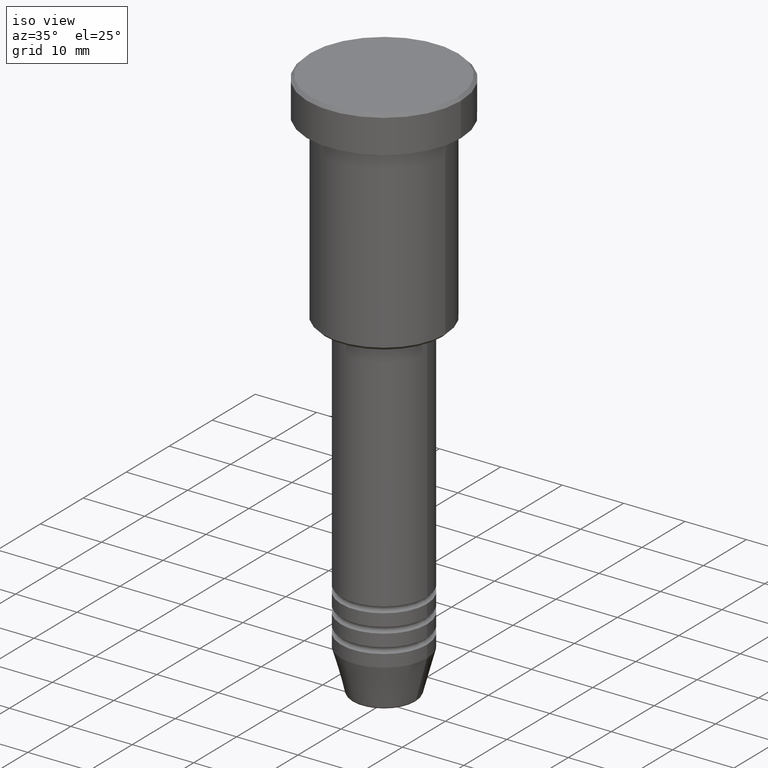
[diagram: clean part render]
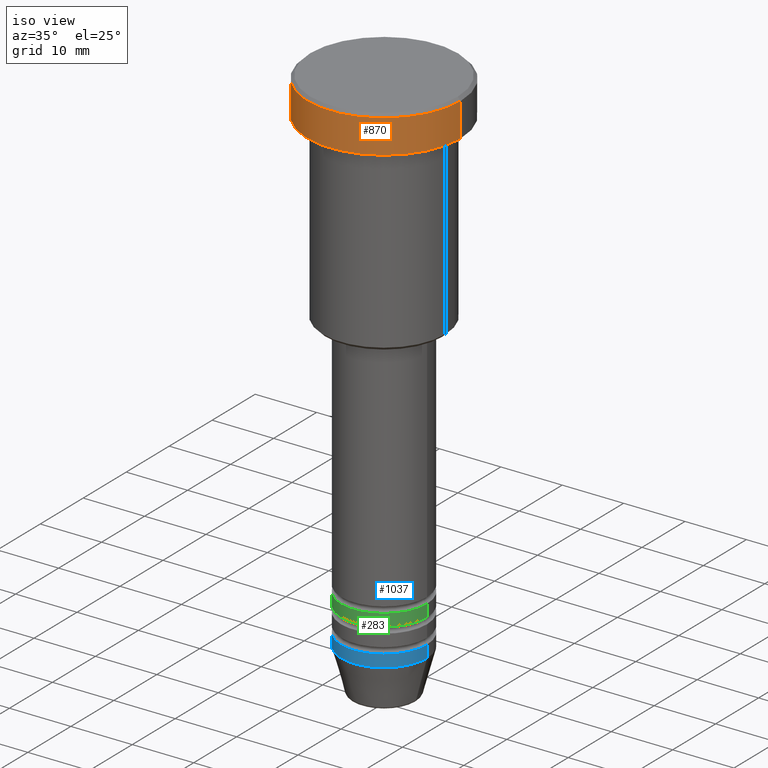
[diagram: same view with three faces highlighted in distinct colors, each labeled with its STEP entity id]
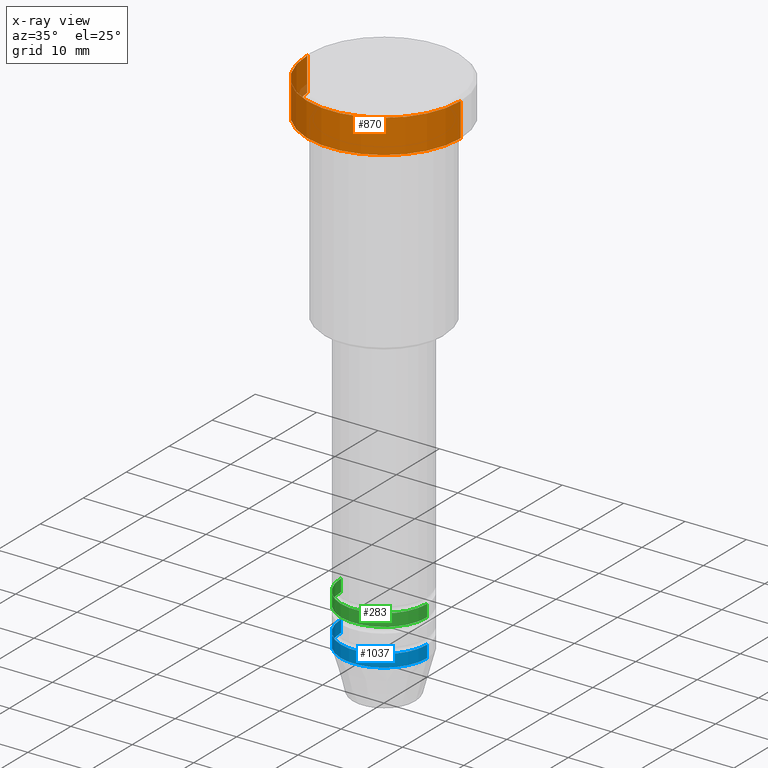
[diagram: x-ray of the same camera — body ghosted, the three highlighted faces saturated]
A machine part, iso view with three faces highlighted in distinct colors.
The next image is the same camera in x-ray (body ghosted, the three faces saturated) — at least one of them is partly hidden behind the body in this view.
Their STEP definitions:

[orange] entity #870 — the highlighted cylindrical surface (partial cylindrical patch) has radius 12.5 mm, axis along (-0, -0, 1).
#19 = DIRECTION ( 'NONE',  ( 1.000000000000000000, 0.000000000000000000, 0.000000000000000000 ) ) ;
#36 = DIRECTION ( 'NONE',  ( -0.000000000000000000, -0.000000000000000000, 1.000000000000000000 ) ) ;
#43 = CARTESIAN_POINT ( 'NONE',  ( -12.50000000000000000, 1.530808498934191521E-15, 0.000000000000000000 ) ) ;
#44 = CARTESIAN_POINT ( 'NONE',  ( 0.000000000000000000, 0.000000000000000000, -0.5000000000000196509 ) ) ;
#103 = VECTOR ( 'NONE', #265, 1000.000000000000000 ) ;
#117 = DIRECTION ( 'NONE',  ( -0.000000000000000000, -0.000000000000000000, 1.000000000000000000 ) ) ;
#140 = DIRECTION ( 'NONE',  ( 0.000000000000000000, 0.000000000000000000, -1.000000000000000000 ) ) ;
#141 = CIRCLE ( 'NONE', #349, 12.50000000000000000 ) ;
#166 = CIRCLE ( 'NONE', #647, 12.50000000000000000 ) ;
#168 = VERTEX_POINT ( 'NONE', #897 ) ;
#197 = EDGE_CURVE ( 'NONE', #755, #168, #269, .T. ) ;
#205 = CARTESIAN_POINT ( 'NONE',  ( 0.000000000000000000, 0.000000000000000000, 0.000000000000000000 ) ) ;
#218 = VERTEX_POINT ( 'NONE', #907 ) ;
#231 = LINE ( 'NONE', #43, #1023 ) ;
#265 = DIRECTION ( 'NONE',  ( -0.000000000000000000, -0.000000000000000000, 1.000000000000000000 ) ) ;
#269 = LINE ( 'NONE', #1163, #103 ) ;
#349 = AXIS2_PLACEMENT_3D ( 'NONE', #758, #859, #1114 ) ;
#361 = VERTEX_POINT ( 'NONE', #412 ) ;
#408 = DIRECTION ( 'NONE',  ( 1.000000000000000000, 0.000000000000000000, 0.000000000000000000 ) ) ;
#412 = CARTESIAN_POINT ( 'NONE',  ( -12.50000000000000000, 1.530808498934191521E-15, -5.999999999999996447 ) ) ;
#444 = ORIENTED_EDGE ( 'NONE', *, *, #772, .T. ) ;
#476 = CARTESIAN_POINT ( 'NONE',  ( 12.50000000000000000, 0.000000000000000000, -5.999999999999996447 ) ) ;
#647 = AXIS2_PLACEMENT_3D ( 'NONE', #44, #140, #408 ) ;
#661 = EDGE_CURVE ( 'NONE', #168, #218, #166, .T. ) ;
#677 = ORIENTED_EDGE ( 'NONE', *, *, #197, .T. ) ;
#723 = AXIS2_PLACEMENT_3D ( 'NONE', #205, #117, #19 ) ;
#755 = VERTEX_POINT ( 'NONE', #476 ) ;
#758 = CARTESIAN_POINT ( 'NONE',  ( 0.000000000000000000, 0.000000000000000000, -5.999999999999996447 ) ) ;
#772 = EDGE_CURVE ( 'NONE', #361, #755, #141, .T. ) ;
#818 = ORIENTED_EDGE ( 'NONE', *, *, #661, .T. ) ;
#840 = CYLINDRICAL_SURFACE ( 'NONE', #723, 12.50000000000000000 ) ;
#859 = DIRECTION ( 'NONE',  ( -0.000000000000000000, -0.000000000000000000, 1.000000000000000000 ) ) ;
#870 = ADVANCED_FACE ( 'NONE', ( #925 ), #840, .T. ) ;
#897 = CARTESIAN_POINT ( 'NONE',  ( 12.50000000000000000, 0.000000000000000000, -0.5000000000000196509 ) ) ;
#907 = CARTESIAN_POINT ( 'NONE',  ( -12.50000000000000000, 1.530808498934191521E-15, -0.5000000000000196509 ) ) ;
#925 = FACE_OUTER_BOUND ( 'NONE', #1169, .T. ) ;
#964 = ORIENTED_EDGE ( 'NONE', *, *, #1162, .F. ) ;
#1023 = VECTOR ( 'NONE', #36, 1000.000000000000000 ) ;
#1114 = DIRECTION ( 'NONE',  ( 1.000000000000000000, 0.000000000000000000, 0.000000000000000000 ) ) ;
#1162 = EDGE_CURVE ( 'NONE', #361, #218, #231, .T. ) ;
#1163 = CARTESIAN_POINT ( 'NONE',  ( 12.50000000000000000, 0.000000000000000000, 0.000000000000000000 ) ) ;
#1169 = EDGE_LOOP ( 'NONE', ( #964, #444, #677, #818 ) ) ;

[blue] entity #1037 — the highlighted cylindrical surface (partial cylindrical patch) has radius 7 mm, axis along (-0, -0, 1).
#38 = VERTEX_POINT ( 'NONE', #150 ) ;
#42 = ORIENTED_EDGE ( 'NONE', *, *, #131, .T. ) ;
#46 = DIRECTION ( 'NONE',  ( -0.000000000000000000, -0.000000000000000000, 1.000000000000000000 ) ) ;
#77 = EDGE_CURVE ( 'NONE', #1078, #38, #594, .T. ) ;
#115 = EDGE_CURVE ( 'NONE', #1078, #887, #789, .T. ) ;
#120 = CARTESIAN_POINT ( 'NONE',  ( -7.000000000000000000, 8.572527594031473190E-16, -83.99999999999998579 ) ) ;
#131 = EDGE_CURVE ( 'NONE', #887, #378, #615, .T. ) ;
#150 = CARTESIAN_POINT ( 'NONE',  ( -7.000000000000000000, 8.572527594031473190E-16, -81.99999999999998579 ) ) ;
#183 = AXIS2_PLACEMENT_3D ( 'NONE', #235, #1111, #1137 ) ;
#221 = CARTESIAN_POINT ( 'NONE',  ( -7.000000000000000000, 8.572527594031473190E-16, 0.000000000000000000 ) ) ;
#235 = CARTESIAN_POINT ( 'NONE',  ( 0.000000000000000000, 0.000000000000000000, -81.99999999999998579 ) ) ;
#249 = DIRECTION ( 'NONE',  ( -0.000000000000000000, -0.000000000000000000, 1.000000000000000000 ) ) ;
#343 = CARTESIAN_POINT ( 'NONE',  ( 0.000000000000000000, 0.000000000000000000, -83.99999999999998579 ) ) ;
#378 = VERTEX_POINT ( 'NONE', #778 ) ;
#409 = AXIS2_PLACEMENT_3D ( 'NONE', #1178, #807, #1173 ) ;
#429 = DIRECTION ( 'NONE',  ( 1.000000000000000000, 0.000000000000000000, 0.000000000000000000 ) ) ;
#456 = FACE_OUTER_BOUND ( 'NONE', #670, .T. ) ;
#594 = LINE ( 'NONE', #221, #1142 ) ;
#615 = LINE ( 'NONE', #1152, #1118 ) ;
#654 = EDGE_CURVE ( 'NONE', #38, #378, #676, .T. ) ;
#670 = EDGE_LOOP ( 'NONE', ( #842, #838, #42, #845 ) ) ;
#676 = CIRCLE ( 'NONE', #183, 7.000000000000000000 ) ;
#715 = DIRECTION ( 'NONE',  ( -0.000000000000000000, -0.000000000000000000, 1.000000000000000000 ) ) ;
#778 = CARTESIAN_POINT ( 'NONE',  ( 7.000000000000000000, 0.000000000000000000, -81.99999999999998579 ) ) ;
#789 = CIRCLE ( 'NONE', #948, 7.000000000000000000 ) ;
#802 = CYLINDRICAL_SURFACE ( 'NONE', #409, 7.000000000000000000 ) ;
#807 = DIRECTION ( 'NONE',  ( -0.000000000000000000, -0.000000000000000000, 1.000000000000000000 ) ) ;
#824 = CARTESIAN_POINT ( 'NONE',  ( 7.000000000000000000, 0.000000000000000000, -83.99999999999998579 ) ) ;
#838 = ORIENTED_EDGE ( 'NONE', *, *, #115, .T. ) ;
#842 = ORIENTED_EDGE ( 'NONE', *, *, #77, .F. ) ;
#845 = ORIENTED_EDGE ( 'NONE', *, *, #654, .F. ) ;
#887 = VERTEX_POINT ( 'NONE', #824 ) ;
#948 = AXIS2_PLACEMENT_3D ( 'NONE', #343, #46, #429 ) ;
#1037 = ADVANCED_FACE ( 'NONE', ( #456 ), #802, .T. ) ;
#1078 = VERTEX_POINT ( 'NONE', #120 ) ;
#1111 = DIRECTION ( 'NONE',  ( -0.000000000000000000, -0.000000000000000000, 1.000000000000000000 ) ) ;
#1118 = VECTOR ( 'NONE', #715, 1000.000000000000000 ) ;
#1137 = DIRECTION ( 'NONE',  ( 1.000000000000000000, 0.000000000000000000, 0.000000000000000000 ) ) ;
#1142 = VECTOR ( 'NONE', #249, 1000.000000000000000 ) ;
#1152 = CARTESIAN_POINT ( 'NONE',  ( 7.000000000000000000, 0.000000000000000000, 0.000000000000000000 ) ) ;
#1173 = DIRECTION ( 'NONE',  ( 1.000000000000000000, 0.000000000000000000, 0.000000000000000000 ) ) ;
#1178 = CARTESIAN_POINT ( 'NONE',  ( 0.000000000000000000, 0.000000000000000000, 0.000000000000000000 ) ) ;

[green] entity #283 — the highlighted cylindrical surface (partial cylindrical patch) has radius 7 mm, axis along (-0, -0, 1).
#8 = AXIS2_PLACEMENT_3D ( 'NONE', #524, #66, #891 ) ;
#32 = EDGE_CURVE ( 'NONE', #174, #822, #1043, .T. ) ;
#66 = DIRECTION ( 'NONE',  ( -0.000000000000000000, -0.000000000000000000, 1.000000000000000000 ) ) ;
#109 = CYLINDRICAL_SURFACE ( 'NONE', #346, 7.000000000000000000 ) ;
#174 = VERTEX_POINT ( 'NONE', #175 ) ;
#175 = CARTESIAN_POINT ( 'NONE',  ( -7.000000000000000000, 8.572527594031473190E-16, -77.99999999999997158 ) ) ;
#196 = CARTESIAN_POINT ( 'NONE',  ( 0.000000000000000000, 0.000000000000000000, 0.000000000000000000 ) ) ;
#232 = EDGE_CURVE ( 'NONE', #822, #757, #1045, .T. ) ;
#237 = DIRECTION ( 'NONE',  ( -0.000000000000000000, -0.000000000000000000, 1.000000000000000000 ) ) ;
#241 = ORIENTED_EDGE ( 'NONE', *, *, #559, .T. ) ;
#283 = ADVANCED_FACE ( 'NONE', ( #655 ), #109, .T. ) ;
#287 = AXIS2_PLACEMENT_3D ( 'NONE', #823, #819, #558 ) ;
#296 = DIRECTION ( 'NONE',  ( -0.000000000000000000, -0.000000000000000000, 1.000000000000000000 ) ) ;
#341 = CARTESIAN_POINT ( 'NONE',  ( 7.000000000000000000, 0.000000000000000000, -77.99999999999997158 ) ) ;
#346 = AXIS2_PLACEMENT_3D ( 'NONE', #196, #472, #563 ) ;
#367 = CIRCLE ( 'NONE', #8, 7.000000000000000000 ) ;
#437 = ORIENTED_EDGE ( 'NONE', *, *, #232, .F. ) ;
#472 = DIRECTION ( 'NONE',  ( -0.000000000000000000, -0.000000000000000000, 1.000000000000000000 ) ) ;
#524 = CARTESIAN_POINT ( 'NONE',  ( 0.000000000000000000, 0.000000000000000000, -77.99999999999997158 ) ) ;
#529 = VECTOR ( 'NONE', #296, 1000.000000000000000 ) ;
#558 = DIRECTION ( 'NONE',  ( 1.000000000000000000, 0.000000000000000000, 0.000000000000000000 ) ) ;
#559 = EDGE_CURVE ( 'NONE', #174, #1067, #367, .T. ) ;
#563 = DIRECTION ( 'NONE',  ( 1.000000000000000000, 0.000000000000000000, 0.000000000000000000 ) ) ;
#584 = ORIENTED_EDGE ( 'NONE', *, *, #787, .T. ) ;
#655 = FACE_OUTER_BOUND ( 'NONE', #805, .T. ) ;
#684 = CARTESIAN_POINT ( 'NONE',  ( 7.000000000000000000, 0.000000000000000000, 0.000000000000000000 ) ) ;
#728 = ORIENTED_EDGE ( 'NONE', *, *, #32, .F. ) ;
#757 = VERTEX_POINT ( 'NONE', #841 ) ;
#787 = EDGE_CURVE ( 'NONE', #1067, #757, #944, .T. ) ;
#805 = EDGE_LOOP ( 'NONE', ( #728, #241, #584, #437 ) ) ;
#819 = DIRECTION ( 'NONE',  ( -0.000000000000000000, -0.000000000000000000, 1.000000000000000000 ) ) ;
#822 = VERTEX_POINT ( 'NONE', #874 ) ;
#823 = CARTESIAN_POINT ( 'NONE',  ( 0.000000000000000000, 0.000000000000000000, -75.99999999999997158 ) ) ;
#841 = CARTESIAN_POINT ( 'NONE',  ( 7.000000000000000000, 0.000000000000000000, -75.99999999999997158 ) ) ;
#874 = CARTESIAN_POINT ( 'NONE',  ( -7.000000000000000000, 8.572527594031473190E-16, -75.99999999999997158 ) ) ;
#891 = DIRECTION ( 'NONE',  ( 1.000000000000000000, 0.000000000000000000, 0.000000000000000000 ) ) ;
#944 = LINE ( 'NONE', #684, #529 ) ;
#1043 = LINE ( 'NONE', #1138, #1165 ) ;
#1045 = CIRCLE ( 'NONE', #287, 7.000000000000000000 ) ;
#1067 = VERTEX_POINT ( 'NONE', #341 ) ;
#1138 = CARTESIAN_POINT ( 'NONE',  ( -7.000000000000000000, 8.572527594031473190E-16, 0.000000000000000000 ) ) ;
#1165 = VECTOR ( 'NONE', #237, 1000.000000000000000 ) ;